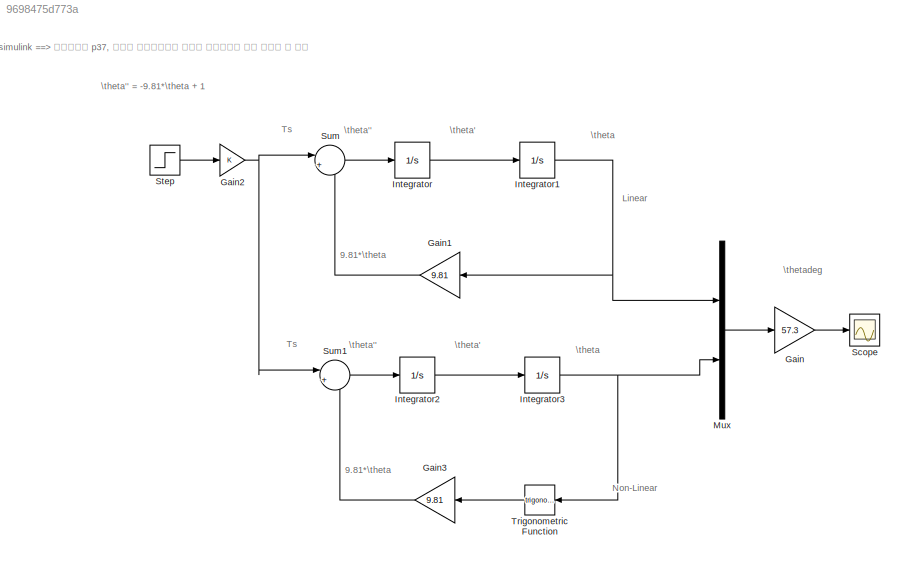
MODEL slx_9698475d773a
KIND model
BLOCK [Gain] Gain
  Gain = 57.3
  OutDataTypeStr = Inherit: Inherit via internal rule
  ParamDataTypeStr = Inherit: Inherit via internal rule
  SaturateOnIntegerOverflow = off
BLOCK [Gain] Gain1
  Gain = 9.81
  OutDataTypeStr = Inherit: Inherit via internal rule
  ParamDataTypeStr = Inherit: Inherit via internal rule
  SaturateOnIntegerOverflow = off
BLOCK [Gain] Gain2
  OutDataTypeStr = Inherit: Inherit via internal rule
  ParamDataTypeStr = Inherit: Inherit via internal rule
  SaturateOnIntegerOverflow = off
BLOCK [Gain] Gain3
  Gain = 9.81
  OutDataTypeStr = Inherit: Inherit via internal rule
  ParamDataTypeStr = Inherit: Inherit via internal rule
  SaturateOnIntegerOverflow = off
BLOCK [Integrator] Integrator
  Ports = [1, 1]
BLOCK [Integrator] Integrator1
  Ports = [1, 1]
BLOCK [Integrator] Integrator2
  Ports = [1, 1]
BLOCK [Integrator] Integrator3
  Ports = [1, 1]
BLOCK [Mux] Mux
  DisplayOption = bar
  Inputs = 2
  Ports = [2, 1]
BLOCK [Scope] Scope
  DataFormat = StructureWithTime
  Floating = off
  NumInputPorts = 1
  Ports = [1]
  SampleTime = 0
  ShowLegends = off
BLOCK [Step] Step
  SampleTime = 0
BLOCK [Sum] Sum
  IconShape = round
  InputSameDT = off
  Inputs = |+-
  OutDataTypeStr = Inherit: Inherit via internal rule
  Ports = [2, 1]
  SaturateOnIntegerOverflow = off
BLOCK [Sum] Sum1
  IconShape = round
  InputSameDT = off
  Inputs = |+-
  OutDataTypeStr = Inherit: Inherit via internal rule
  Ports = [2, 1]
  SaturateOnIntegerOverflow = off
BLOCK [Trigonometry] Trigonometric Function
  Ports = [1, 1]
ANNOTATION (root): 9.81*\theta
ANNOTATION (root): Linear
ANNOTATION (root): Non-Linear
ANNOTATION (root): Ts
ANNOTATION (root): \theta
ANNOTATION (root): \theta'
ANNOTATION (root): \theta''
ANNOTATION (root): \theta'' = -9.81*\theta + 1
ANNOTATION (root): \thetadeg
ANNOTATION (root): simulink ==> 자동제어책 p37, 진자의 운동방정식을 선형과 비선형으로 나눠 실험해 본 블록
LINE Gain1:1 -> Sum:2
NET Gain2:1 -> Sum1:1, Sum:1
LINE Gain3:1 -> Sum1:2
LINE Gain:1 -> Scope:1
NET Integrator1:1 -> Gain1:1, Mux:1
LINE Integrator2:1 -> Integrator3:1
NET Integrator3:1 -> Mux:2, Trigonometric Function:1
LINE Integrator:1 -> Integrator1:1
LINE Mux:1 -> Gain:1
LINE Step:1 -> Gain2:1
LINE Sum1:1 -> Integrator2:1
LINE Sum:1 -> Integrator:1
LINE Trigonometric Function:1 -> Gain3:1
note: NET lines group one-source signal fan-out (src -> all destinations, sorted); 1:1 wires keep LINE
